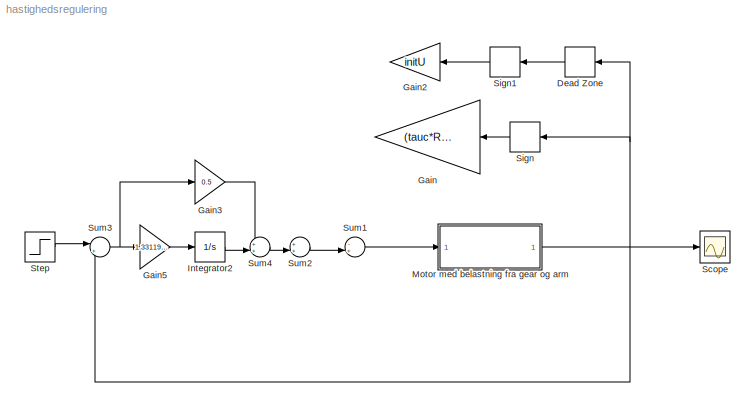
MODEL hastighedsregulering
KIND model
BLOCK [DeadZone] Dead Zone
  LowerValue = -0.01
  SID = 25
  SampleTime = 0.01
  UpperValue = 0.01
BLOCK [Gain] Gain
  Gain = (tauc*Rm)/Km
  OutDataType = fixdt(1, 16)
  OutDataTypeMode = Inherit via internal rule
  OutDataTypeStr = Inherit: Inherit via internal rule
  OutScaling = 2^0
  ParamDataTypeStr = Inherit: Inherit via internal rule
  ParameterDataType = fixdt(1, 16)
  ParameterDataTypeMode = Inherit via internal rule
  ParameterScaling = 2^0
  SID = 1
  SaturateOnIntegerOverflow = off
BLOCK [Gain] Gain2
  Gain = initU
  OutDataType = fixdt(1, 16)
  OutDataTypeMode = Inherit via internal rule
  OutDataTypeStr = Inherit: Inherit via internal rule
  OutScaling = 2^0
  ParamDataTypeStr = Inherit: Inherit via internal rule
  ParameterDataType = fixdt(1, 16)
  ParameterDataTypeMode = Inherit via internal rule
  ParameterScaling = 2^0
  SID = 24
  SaturateOnIntegerOverflow = off
BLOCK [Gain] Gain3
  Gain = 0.5
  OutDataType = fixdt(1, 16)
  OutDataTypeMode = Inherit via internal rule
  OutDataTypeStr = Inherit: Inherit via internal rule
  OutScaling = 2^0
  ParamDataTypeStr = Inherit: Inherit via internal rule
  ParameterDataType = fixdt(1, 16)
  ParameterDataTypeMode = Inherit via internal rule
  ParameterScaling = 2^0
  SID = 41
  SaturateOnIntegerOverflow = off
BLOCK [Gain] Gain5
  Gain = 1.331199904
  OutDataType = fixdt(1, 16)
  OutDataTypeMode = Inherit via internal rule
  OutDataTypeStr = Inherit: Inherit via internal rule
  OutScaling = 2^0
  ParamDataTypeStr = Inherit: Inherit via internal rule
  ParameterDataType = fixdt(1, 16)
  ParameterDataTypeMode = Inherit via internal rule
  ParameterScaling = 2^0
  SID = 42
  SaturateOnIntegerOverflow = off
BLOCK [Integrator] Integrator2
  Ports = [1, 1]
  SID = 43
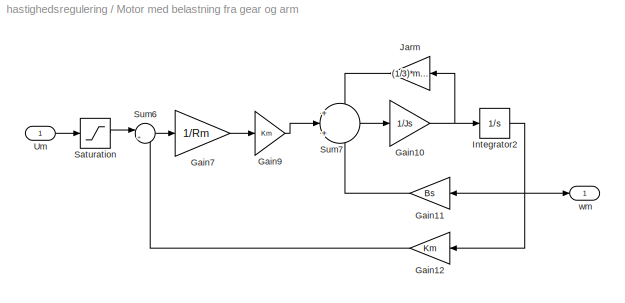
BLOCK [SubSystem] Motor med belastning fra gear og arm
  FunctionWithSeparateData = off
  MaskHideContents = off
  MinAlgLoopOccurrences = off
  Opaque = off
  Ports = [1, 1]
  PropExecContextOutsideSubsystem = off
  RTWSystemCode = Auto
  RequestExecContextInheritance = off
  SID = 26
BLOCK [Gain] Motor med belastning fra gear og arm/Gain10
  Gain = 1/Js
  OutDataType = fixdt(1, 16)
  OutDataTypeMode = Inherit via internal rule
  OutDataTypeStr = Inherit: Inherit via internal rule
  OutScaling = 2^0
  ParamDataTypeStr = Inherit: Inherit via internal rule
  ParameterDataType = fixdt(1, 16)
  ParameterDataTypeMode = Inherit via internal rule
  ParameterScaling = 2^0
  SID = 28
  SaturateOnIntegerOverflow = off
BLOCK [Gain] Motor med belastning fra gear og arm/Gain11
  Gain = Bs
  OutDataType = fixdt(1, 16)
  OutDataTypeMode = Inherit via internal rule
  OutDataTypeStr = Inherit: Inherit via internal rule
  OutScaling = 2^0
  ParamDataTypeStr = Inherit: Inherit via internal rule
  ParameterDataType = fixdt(1, 16)
  ParameterDataTypeMode = Inherit via internal rule
  ParameterScaling = 2^0
  SID = 29
  SaturateOnIntegerOverflow = off
BLOCK [Gain] Motor med belastning fra gear og arm/Gain12
  Gain = Km
  OutDataType = fixdt(1, 16)
  OutDataTypeMode = Inherit via internal rule
  OutDataTypeStr = Inherit: Inherit via internal rule
  OutScaling = 2^0
  ParamDataTypeStr = Inherit: Inherit via internal rule
  ParameterDataType = fixdt(1, 16)
  ParameterDataTypeMode = Inherit via internal rule
  ParameterScaling = 2^0
  SID = 30
  SaturateOnIntegerOverflow = off
BLOCK [Gain] Motor med belastning fra gear og arm/Gain7
  Gain = 1/Rm
  OutDataType = fixdt(1, 16)
  OutDataTypeMode = Inherit via internal rule
  OutDataTypeStr = Inherit: Inherit via internal rule
  OutScaling = 2^0
  ParamDataTypeStr = Inherit: Inherit via internal rule
  ParameterDataType = fixdt(1, 16)
  ParameterDataTypeMode = Inherit via internal rule
  ParameterScaling = 2^0
  SID = 31
  SaturateOnIntegerOverflow = off
BLOCK [Gain] Motor med belastning fra gear og arm/Gain9
  Gain = Km
  OutDataType = fixdt(1, 16)
  OutDataTypeMode = Inherit via internal rule
  OutDataTypeStr = Inherit: Inherit via internal rule
  OutScaling = 2^0
  ParamDataTypeStr = Inherit: Inherit via internal rule
  ParameterDataType = fixdt(1, 16)
  ParameterDataTypeMode = Inherit via internal rule
  ParameterScaling = 2^0
  SID = 32
  SaturateOnIntegerOverflow = off
BLOCK [Integrator] Motor med belastning fra gear og arm/Integrator2
  Ports = [1, 1]
  SID = 33
BLOCK [Gain] Motor med belastning fra gear og arm/Jarm
  Gain = (1/3)*ma*la^2*N^6
  OutDataType = fixdt(1, 16)
  OutDataTypeMode = Inherit via internal rule
  OutDataTypeStr = Inherit: Inherit via internal rule
  OutScaling = 2^0
  ParamDataTypeStr = Inherit: Inherit via internal rule
  ParameterDataType = fixdt(1, 16)
  ParameterDataTypeMode = Inherit via internal rule
  ParameterScaling = 2^0
  SID = 35
  SaturateOnIntegerOverflow = off
BLOCK [Saturate] Motor med belastning fra gear og arm/Saturation
  LowerLimit = -13
  OutDataType = fixdt(1, 16)
  OutScaling = 2^0
  SID = 36
  UpperLimit = 13
BLOCK [Sum] Motor med belastning fra gear og arm/Sum6
  IconShape = round
  InputSameDT = off
  Inputs = |+-
  OutDataType = fixdt(1, 16)
  OutDataTypeMode = Inherit via internal rule
  OutDataTypeStr = Inherit: Inherit via internal rule
  OutScaling = 2^0
  Ports = [2, 1]
  SID = 37
  SaturateOnIntegerOverflow = off
BLOCK [Sum] Motor med belastning fra gear og arm/Sum7
  IconShape = round
  InputSameDT = off
  Inputs = +|+|-
  OutDataType = fixdt(1, 16)
  OutDataTypeMode = Inherit via internal rule
  OutDataTypeStr = Inherit: Inherit via internal rule
  OutScaling = 2^0
  Ports = [3, 1]
  SID = 38
  SaturateOnIntegerOverflow = off
BLOCK [Inport] Motor med belastning fra gear og arm/Um
  IconDisplay = Port number
  OutDataType = fixdt(1, 16)
  OutScaling = 2^0
  SID = 27
BLOCK [Outport] Motor med belastning fra gear og arm/wm
  IconDisplay = Port number
  OutDataType = fixdt(1, 16)
  OutScaling = 2^0
  SID = 40
BLOCK [Scope] Scope
  DataFormat = StructureWithTime
  Floating = off
  NumInputPorts = 1
  Ports = [1]
  SID = 11
  SampleTime = 0
  ZoomMode = yonly
BLOCK [Signum] Sign
  SID = 2
  SampleTime = 0.01
BLOCK [Signum] Sign1
  SID = 23
  SampleTime = 0.01
BLOCK [Step] Step
  After = 100
  SID = 5
  SampleTime = 0
BLOCK [Sum] Sum1
  IconShape = round
  InputSameDT = off
  Inputs = -+|
  OutDataType = fixdt(1, 16)
  OutDataTypeMode = Inherit via internal rule
  OutDataTypeStr = Inherit: Inherit via internal rule
  OutScaling = 2^0
  Ports = [2, 1]
  SID = 3
  SaturateOnIntegerOverflow = off
BLOCK [Sum] Sum2
  IconShape = round
  InputSameDT = off
  Inputs = ++|
  OutDataType = fixdt(1, 16)
  OutDataTypeMode = Inherit via internal rule
  OutDataTypeStr = Inherit: Inherit via internal rule
  OutScaling = 2^0
  Ports = [2, 1]
  SID = 15
  SaturateOnIntegerOverflow = off
BLOCK [Sum] Sum3
  IconShape = round
  InputSameDT = off
  Inputs = |+-
  OutDataType = fixdt(1, 16)
  OutDataTypeMode = Inherit via internal rule
  OutDataTypeStr = Inherit: Inherit via internal rule
  OutScaling = 2^0
  Ports = [2, 1]
  SID = 16
  SaturateOnIntegerOverflow = off
BLOCK [Sum] Sum4
  IconShape = round
  InputSameDT = off
  Inputs = ++|
  OutDataType = fixdt(1, 16)
  OutDataTypeMode = Inherit via internal rule
  OutDataTypeStr = Inherit: Inherit via internal rule
  OutScaling = 2^0
  Ports = [2, 1]
  SID = 44
  SaturateOnIntegerOverflow = off
LINE Dead Zone:1 -> Sign1:1
LINE Gain3:1 -> Sum4:1
LINE Gain5:1 -> Integrator2:1
LINE Integrator2:1 -> Sum4:2
NET Motor med belastning fra gear og arm/Gain10:1 -> Motor med belastning fra gear og arm/Integrator2:1, Motor med belastning fra gear og arm/Jarm:1
LINE Motor med belastning fra gear og arm/Gain11:1 -> Motor med belastning fra gear og arm/Sum7:3
LINE Motor med belastning fra gear og arm/Gain12:1 -> Motor med belastning fra gear og arm/Sum6:2
LINE Motor med belastning fra gear og arm/Gain7:1 -> Motor med belastning fra gear og arm/Gain9:1
LINE Motor med belastning fra gear og arm/Gain9:1 -> Motor med belastning fra gear og arm/Sum7:2
NET Motor med belastning fra gear og arm/Integrator2:1 -> Motor med belastning fra gear og arm/Gain11:1, Motor med belastning fra gear og arm/Gain12:1, Motor med belastning fra gear og arm/wm:1
LINE Motor med belastning fra gear og arm/Jarm:1 -> Motor med belastning fra gear og arm/Sum7:1
LINE Motor med belastning fra gear og arm/Saturation:1 -> Motor med belastning fra gear og arm/Sum6:1
LINE Motor med belastning fra gear og arm/Sum6:1 -> Motor med belastning fra gear og arm/Gain7:1
LINE Motor med belastning fra gear og arm/Sum7:1 -> Motor med belastning fra gear og arm/Gain10:1
LINE Motor med belastning fra gear og arm/Um:1 -> Motor med belastning fra gear og arm/Saturation:1
NET Motor med belastning fra gear og arm:1 -> Dead Zone:1, Scope:1, Sign:1, Sum3:2
LINE Sign1:1 -> Gain2:1
LINE Sign:1 -> Gain:1
LINE Step:1 -> Sum3:1
LINE Sum1:1 -> Motor med belastning fra gear og arm:1
LINE Sum2:1 -> Sum1:2
NET Sum3:1 -> Gain3:1, Gain5:1
LINE Sum4:1 -> Sum2:2
note: NET lines group one-source signal fan-out (src -> all destinations, sorted); 1:1 wires keep LINE
